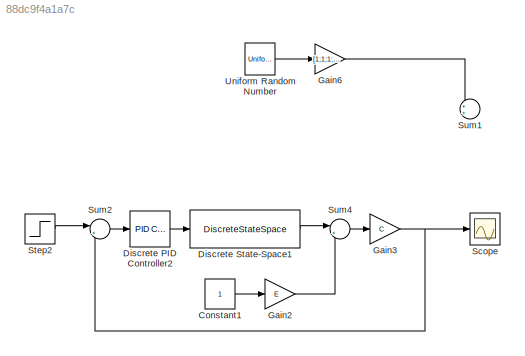
MODEL slx_88dc9f4a1a7c
KIND model
CONFIG AbsTol = auto
CONFIG EnableMultiTasking = off
CONFIG FixedStep = auto
CONFIG MaxStep = auto
CONFIG MinStep = auto
CONFIG RelTol = 1e-3
CONFIG SampleTimeConstraint = Unconstrained
CONFIG SolverName = VariableStepAuto
CONFIG StartTime = 0.0
CONFIG StopTime = 10.0
BLOCK [Constant] Constant1
  SampleTime = Ts
BLOCK [Reference] Discrete PID Controller2  REF=slpidlib/PID Controller
  LibrarySourceBlock = simulink/Discrete/Discrete PID Controller
  SourceBlock = slpidlib/PID Controller
  SourceType = PID 1dof
BLOCK [DiscreteStateSpace] Discrete State-Space1
  A = A
  B = B
  C = eye(4)
  D = zeros(4,1)
  InitialCondition = x0
  SampleTime = Ts
BLOCK [Gain] Gain2
  Gain = E
  Multiplication = Matrix(K*u)
BLOCK [Gain] Gain3
  Gain = C
  Multiplication = Matrix(K*u)
BLOCK [Gain] Gain6
  Gain = [1;1;1;1]
  Multiplication = Matrix(K*u)
BLOCK [Scope] Scope
  Floating = off
  NumInputPorts = 1
  ScopeSpecificationString = Simulink.scopes.TimeScopeBlockCfg('CurrentConfiguration', extmgr.ConfigurationSet(extmgr.Configuration('Core','General UI',true),extmgr.Configuration('Core','Source UI',true),extmgr.Configuration('Sources','WiredSimulink',true),extmgr.Configuration('Visuals','Time Domain',true,'SerializedDisplays',{struct('MinYLimReal','-0.81259','MaxYLimReal','1.31332','YLabelReal','','MinYLimMag','0.00000','MaxY...<+1325ch>
BLOCK [Step] Step2
  SampleTime = Ts
BLOCK [Sum] Sum1
  Inputs = ++|
BLOCK [Sum] Sum2
  Inputs = |+-
BLOCK [Sum] Sum4
  Inputs = |++
BLOCK [UniformRandomNumber] Uniform Random Number
  Maximum = 0.2
  Minimum = -0.2
  SampleTime = Ts
LINE Constant1:1 -> Gain2:1
LINE Discrete PID Controller2:1 -> Discrete State-Space1:1
LINE Discrete State-Space1:1 -> Sum4:1
LINE Gain2:1 -> Sum4:2
NET Gain3:1 -> Scope:1, Sum2:2
LINE Gain6:1 -> Sum1:1
LINE Step2:1 -> Sum2:1
LINE Sum2:1 -> Discrete PID Controller2:1
LINE Sum4:1 -> Gain3:1
LINE Uniform Random Number:1 -> Gain6:1
note: NET lines group one-source signal fan-out (src -> all destinations, sorted); 1:1 wires keep LINE
